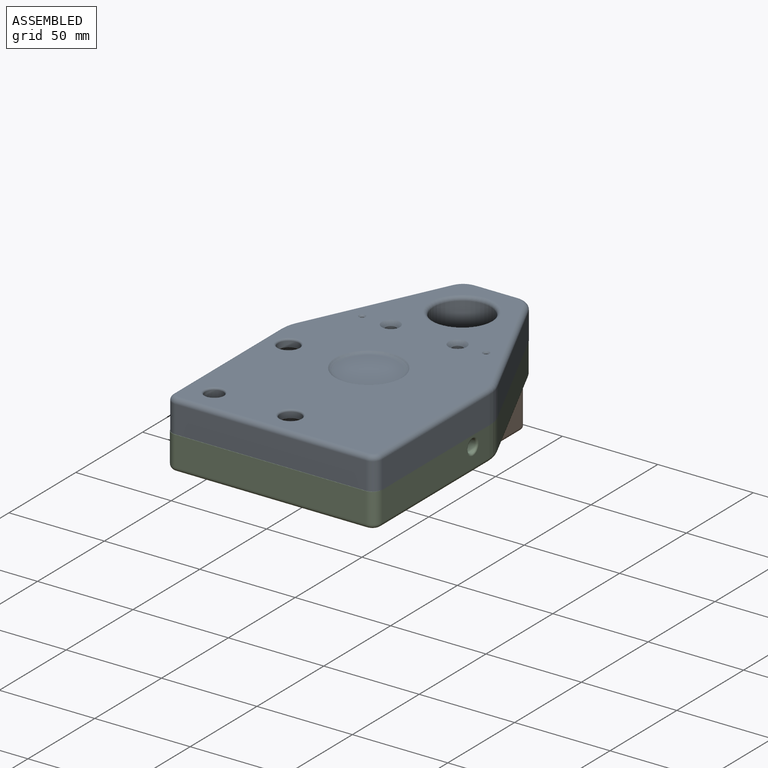
[diagram: assembled view]
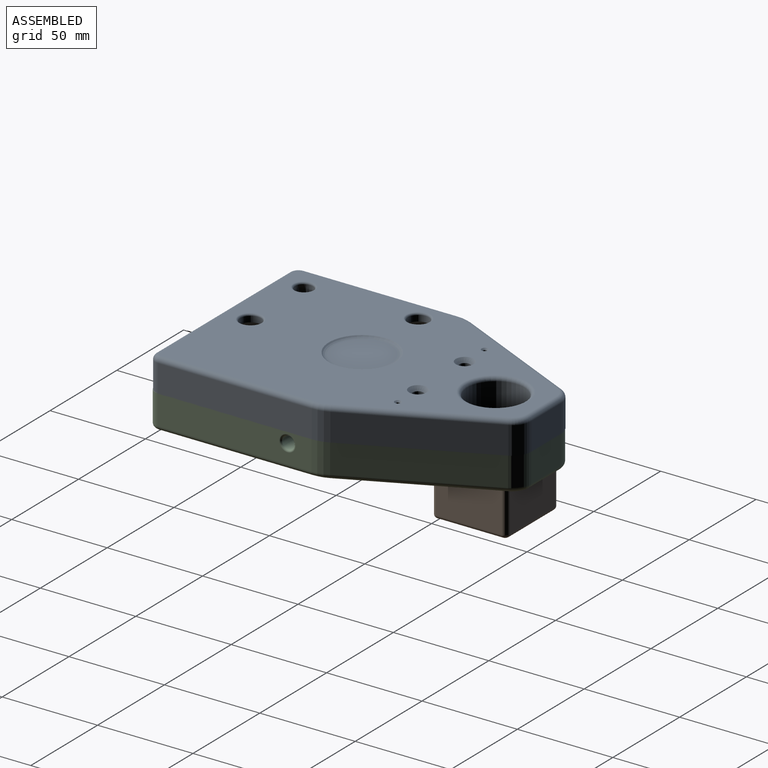
[diagram: assembled view, second angle]
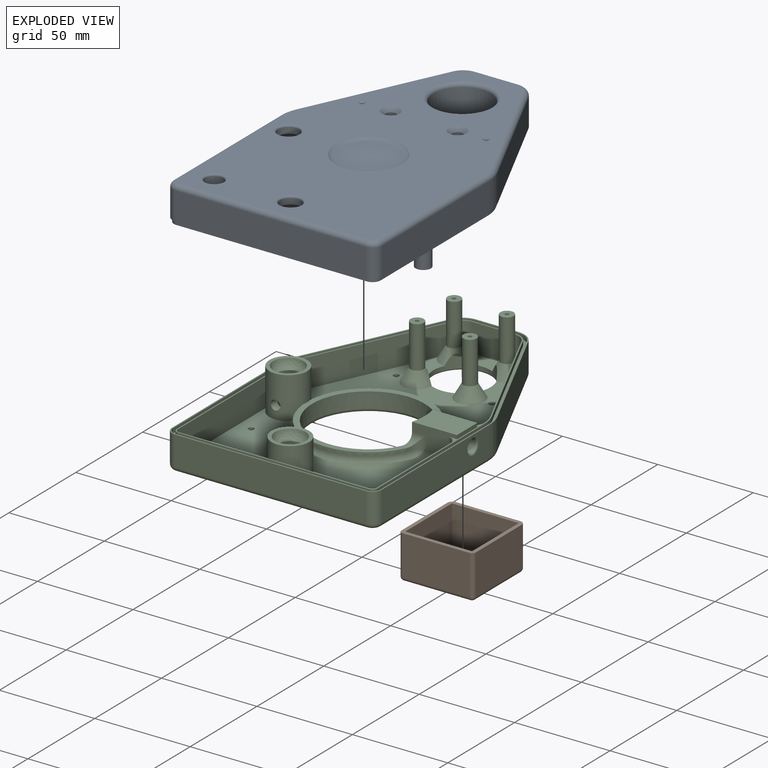
[diagram: exploded view]
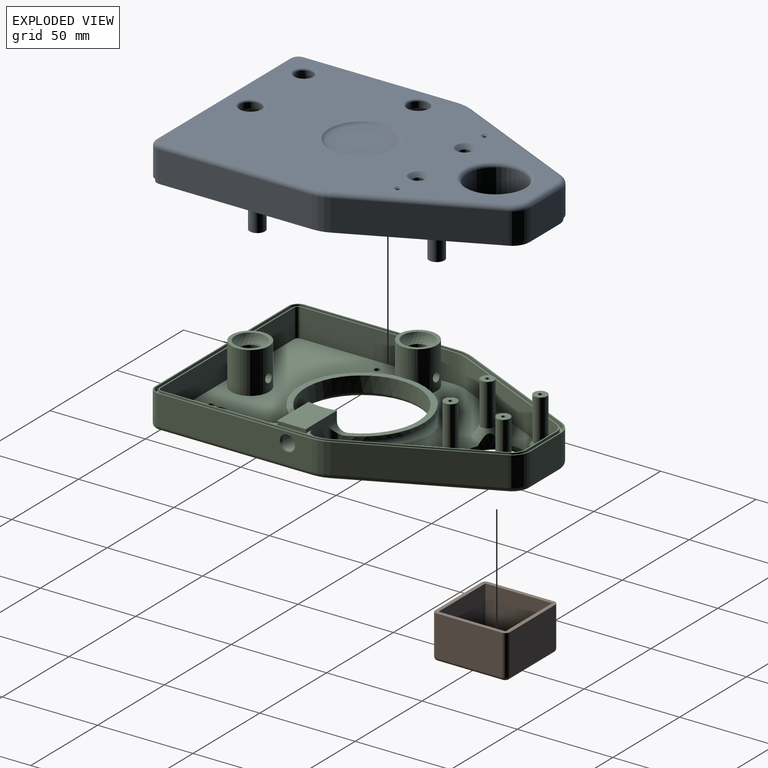
[diagram: exploded view, second angle]
ASSEMBLY  parts=3 mates=2
PART A: 127 faces, bbox 113.3x171.2x34 mm
  f0: cylinder r=5.5mm len=11mm, axis (0,0,-1), area 105.5mm2, adj f102,f104
  f1: plane 5.9x5.9mm, normal (0,0,-1), area 3.6mm2, adj f63,f67
  f2: plane 5.9x5.9mm, normal (0,0,-1), area 3.6mm2, adj f62,f64
  f3: cylinder r=10mm len=14.5mm, axis (0,0,-1), area 164.2mm2, adj f4,f14,f30,f78
  f4: plane 22.29x14.5mm, normal (0,1,0), area 323.2mm2, adj f3,f5,f30,f76
  f5: cylinder r=10mm len=14.5mm, axis (0,0,-1), area 164.2mm2, adj f4,f6,f30,f74
  f6: plane 70.21x32.91mm, normal (-0.91,0.42,0), area 1124.4mm2, adj f5,f7,f30,f72
  f7: cylinder r=20mm len=14.5mm, axis (0,0,-1), area 127.1mm2, adj f6,f8,f30,f73
  f8: plane 80.55x14.5mm, normal (-1,0,0), area 1167.9mm2, adj f7,f9,f30,f75
  f9: cylinder r=5mm len=14.5mm, axis (0,0,-1), area 113.9mm2, adj f8,f10,f30,f77
  f10: plane 100x14.5mm, normal (0,-1,0), area 1450mm2, adj f9,f11,f30,f79
  f11: cylinder r=5mm len=14.5mm, axis (0,0,-1), area 113.9mm2, adj f10,f12,f30,f81
  f12: plane 80.55x14.5mm, normal (1,0,0), area 1167.9mm2, adj f11,f13,f30,f83
  f13: cylinder r=20mm len=14.5mm, axis (0,0,-1), area 127.1mm2, adj f12,f14,f30,f82
  f14: plane 70.21x32.91mm, normal (0.91,0.42,0), area 1124.4mm2, adj f3,f13,f30,f80
  f15: plane 165x105mm, normal (0,0,1), area 12055.5mm2, adj f60,f70,f71,f72,f73,f74,f75,f76
  f16: cylinder r=7mm len=14mm, axis (0,0,-1), area 111mm2, adj f17,f27,f28,f29
  f17: plane 22.29x14mm, normal (0,-1,0), area 312mm2, adj f16,f18,f28,f29
  f18: cylinder r=7mm len=14mm, axis (0,0,-1), area 111mm2, adj f17,f19,f28,f29
  f19: plane 70.21x32.91mm, normal (0.91,-0.42,0), area 1078.5mm2, adj f18,f20,f28,f29,f126
  f20: cylinder r=17mm len=14mm, axis (0,0,-1), area 104.3mm2, adj f19,f21,f28,f29
  f21: plane 80.55x14mm, normal (1,0,0), area 1127.6mm2, adj f20,f22,f28,f29
  f22: cylinder r=2mm len=14mm, axis (0,0,-1), area 44mm2, adj f21,f23,f28,f29
  f23: plane 100x14mm, normal (0,1,0), area 1400mm2, adj f22,f24,f28,f29
  f24: cylinder r=2mm len=14mm, axis (0,0,-1), area 44mm2, adj f23,f25,f28,f29
  f25: plane 80.55x14mm, normal (-1,0,0), area 1127.6mm2, adj f24,f26,f28,f29
  f26: cylinder r=17mm len=14mm, axis (0,0,-1), area 104.3mm2, adj f25,f27,f28,f29
  f27: plane 70.21x32.91mm, normal (-0.91,-0.42,0), area 1078.5mm2, adj f16,f26,f28,f29,f125
  f28: plane 164x104mm, normal (0,0,-1), area 11342mm2, adj f16,f17,f18,f19,f20,f21,f22,f23
  f29: plane 165.7x105.7mm, normal (0,0,-1), area 406.4mm2, adj f16,f17,f18,f19,f20,f21,f22,f23
  f30: plane 170x110mm, normal (0,0,-1), area 417.9mm2, adj f3,f4,f5,f6,f7,f8,f9,f10
  f31: cylinder r=9.15mm len=8.29mm, axis (0,0,-1), area 22.3mm2, adj f30,f32,f54,f55
  f32: plane 70.21x32.91mm, normal (0.91,0.42,0), area 166.7mm2, adj f30,f31,f33,f55
  f33: cylinder r=19.15mm len=8.13mm, axis (0,0,-1), area 18mm2, adj f30,f32,f34,f55
  f34: plane 80.55x2.15mm, normal (1,0,0), area 173.2mm2, adj f30,f33,f35,f55
  f35: cylinder r=4.15mm len=4.15mm, axis (0,0,-1), area 14mm2, adj f30,f34,f36,f55
  f36: plane 100x2.15mm, normal (0,-1,0), area 215mm2, adj f30,f35,f37,f55
  f37: cylinder r=4.15mm len=4.15mm, axis (0,0,-1), area 14mm2, adj f30,f36,f38,f55
  f38: plane 80.55x2.15mm, normal (-1,0,0), area 173.2mm2, adj f30,f37,f39,f55
  f39: cylinder r=19.15mm len=8.13mm, axis (0,0,-1), area 18mm2, adj f30,f38,f40,f55
  f40: plane 70.21x32.91mm, normal (-0.91,0.42,0), area 166.7mm2, adj f30,f39,f41,f55
  f41: cylinder r=9.15mm len=8.29mm, axis (0,0,-1), area 22.3mm2, adj f30,f40,f54,f55
  f42: plane 70.21x32.91mm, normal (-0.91,-0.42,0), area 166.7mm2, adj f29,f43,f53,f55
  f43: cylinder r=7.85mm len=7.11mm, axis (0,0,-1), area 19.1mm2, adj f29,f42,f44,f55
  f44: plane 22.29x2.15mm, normal (0,-1,0), area 47.9mm2, adj f29,f43,f45,f55
  f45: cylinder r=7.85mm len=7.11mm, axis (0,0,-1), area 19.1mm2, adj f29,f44,f46,f55
  f46: plane 70.21x32.91mm, normal (0.91,-0.42,0), area 166.7mm2, adj f29,f45,f47,f55
  f47: cylinder r=17.85mm len=7.58mm, axis (0,0,-1), area 16.8mm2, adj f29,f46,f48,f55
  f48: plane 80.55x2.15mm, normal (1,0,0), area 173.2mm2, adj f29,f47,f49,f55
  f49: cylinder r=2.85mm len=2.85mm, axis (0,0,-1), area 9.6mm2, adj f29,f48,f50,f55
  f50: plane 100x2.15mm, normal (0,1,0), area 215mm2, adj f29,f49,f51,f55
  f51: cylinder r=2.85mm len=2.85mm, axis (0,0,-1), area 9.6mm2, adj f29,f50,f52,f55
  f52: plane 80.55x2.15mm, normal (-1,0,0), area 173.2mm2, adj f29,f51,f53,f55
  f53: cylinder r=17.85mm len=7.58mm, axis (0,0,-1), area 16.8mm2, adj f29,f42,f52,f55
  f54: plane 22.29x2.15mm, normal (0,1,0), area 47.9mm2, adj f30,f31,f41,f55
  f55: plane 168.3x108.3mm, normal (0,0,-1), area 630.4mm2, adj f31,f32,f33,f34,f35,f36,f37,f38
  f56: cylinder r=15mm len=30mm, axis (0,0,-1), area 1696.5mm2, adj f85,f86
  f57: cylinder r=8mm len=16mm, axis (0,0,-1), area 502.7mm2, adj f28,f58
  f58: plane 16x16mm, normal (0,0,-1), area 102.6mm2, adj f57,f59
  f59: cone r=4.9mm half-angle=4deg, axis (0,0,-1), area 389.4mm2, adj f58,f60
  f60: torus R=5.76mm, axis (0,0,1), area 52.7mm2, adj f15,f59
  f61: cylinder r=5.5mm len=11mm, axis (0,0,-1), area 105.5mm2, adj f101,f103
  f62: cylinder r=2.75mm len=5.5mm, axis (0,0,-1), area 17.3mm2, adj f2,f71
  f63: cylinder r=2.75mm len=5.5mm, axis (0,0,-1), area 17.3mm2, adj f1,f70
  f64: cylinder r=2.95mm len=5.9mm, axis (0,0,-1), area 25.9mm2, adj f2,f66
  f65: cylinder r=4.25mm len=8.5mm, axis (0,0,-1), area 37.4mm2, adj f28,f66
  f66: plane 8.5x8.5mm, normal (0,0,-1), area 29.4mm2, adj f64,f65
  f67: cylinder r=2.95mm len=5.9mm, axis (0,0,-1), area 25.9mm2, adj f1,f69
  f68: cylinder r=4.25mm len=8.5mm, axis (0,0,-1), area 37.4mm2, adj f28,f69
  f69: plane 8.5x8.5mm, normal (0,0,-1), area 29.4mm2, adj f67,f68
  f70: cone r=2.75mm half-angle=45deg, axis (0,0,1), area 66.6mm2, adj f15,f63
  f71: cone r=2.75mm half-angle=45deg, axis (0,0,1), area 66.6mm2, adj f15,f62
  f72: cylinder r=2.5mm len=71.27mm, axis (0.42,0.91,0), area 304.5mm2, adj f6,f15,f73,f74
  f73: torus R=17.5mm, axis (0,0,1), area 32.9mm2, adj f7,f15,f72,f75
  f74: torus R=7.5mm, axis (0,0,1), area 40.4mm2, adj f5,f15,f72,f76
  f75: cylinder r=2.5mm len=80.55mm, axis (0,1,0), area 316.3mm2, adj f8,f15,f73,f77
  f76: cylinder r=2.5mm len=22.29mm, axis (1,0,0), area 87.5mm2, adj f4,f15,f74,f78
  f77: torus R=2.5mm, axis (0,0,1), area 25.2mm2, adj f9,f15,f75,f79
  f78: torus R=7.5mm, axis (0,0,1), area 40.4mm2, adj f3,f15,f76,f80
  f79: cylinder r=2.5mm len=100mm, axis (-1,0,0), area 392.7mm2, adj f10,f15,f77,f81
  f80: cylinder r=2.5mm len=71.27mm, axis (0.42,-0.91,0), area 304.5mm2, adj f14,f15,f78,f82
  f81: torus R=2.5mm, axis (0,0,1), area 25.2mm2, adj f11,f15,f79,f83
  f82: torus R=17.5mm, axis (0,0,1), area 32.9mm2, adj f13,f15,f80,f83
  f83: cylinder r=2.5mm len=80.55mm, axis (0,-1,0), area 316.3mm2, adj f12,f15,f81,f82
  f84: cylinder r=17mm len=34mm, axis (0,0,-1), area 1815.8mm2, adj f28,f85
  f85: plane 34x34mm, normal (0,0,-1), area 201.1mm2, adj f56,f84
  f86: torus R=17mm, axis (0,0,1), area 310.4mm2, adj f15,f56
  f87: cylinder r=6mm len=12mm, axis (0,0,1), area 94.2mm2, adj f28,f88
  f88: plane 12x12mm, normal (0,0,-1), area 113.1mm2, adj f87
  f89: cylinder r=6mm len=12mm, axis (0,0,1), area 94.2mm2, adj f28,f90
  f90: plane 12x12mm, normal (0,0,-1), area 110mm2, adj f89,f95
  f91: cylinder r=6mm len=12mm, axis (0,0,1), area 94.2mm2, adj f28,f92
  f92: plane 12x12mm, normal (0,0,-1), area 110mm2, adj f91,f93
  f93: cylinder r=1mm len=4.75mm, axis (0,0,1), area 29.8mm2, adj f92,f94
  f94: cone r=1mm half-angle=45deg, axis (0,0,1), area 9.2mm2, adj f15,f93
  f95: cylinder r=1mm len=4.75mm, axis (0,0,1), area 29.8mm2, adj f90,f96
  f96: cone r=1mm half-angle=45deg, axis (0,0,1), area 9.2mm2, adj f15,f95
  f97: cylinder r=4mm len=22mm, axis (0,0,1), area 552.9mm2, adj f114,f126
  f98: cylinder r=4mm len=21mm, axis (0,0,1), area 527.8mm2, adj f117,f124
  f99: cylinder r=4mm len=22mm, axis (0,0,1), area 552.9mm2, adj f111,f125
  f100: cylinder r=4mm len=21mm, axis (0,0,1), area 527.8mm2, adj f120,f123
  f101: sphere r=8.1mm, area 238mm2, adj f61,f107
  f102: sphere r=8.1mm, area 238.1mm2, adj f0,f105
  f103: torus R=6.5mm, axis (0,0,1), area 57.9mm2, adj f15,f61
  f104: torus R=6.5mm, axis (0,0,1), area 57.9mm2, adj f0,f15
  f105: plane 19.8x19.8mm, normal (0,0,-1), area 106.8mm2, adj f102,f106
  f106: cylinder r=9.9mm len=19.8mm, axis (0,0,-1), area 356.5mm2, adj f28,f105
  f107: plane 19.8x19.8mm, normal (0,0,-1), area 106.8mm2, adj f101,f108
  f108: cylinder r=9.9mm len=19.8mm, axis (0,0,-1), area 356.5mm2, adj f28,f107
  f109: plane 30.53x30.53mm, normal (0,0,1), area 732mm2, adj f110
  f110: torus R=15.26mm, axis (0,0,-1), area 260.8mm2, adj f15,f109
  f111: plane 8x8mm, normal (0,0,-1), area 45.4mm2, adj f99,f113
  f112: cone r=0mm half-angle=59deg, axis (0,0,-1), area 5.7mm2, adj f113
  f113: cylinder r=1.25mm len=29mm, axis (0,0,-1), area 227.8mm2, adj f111,f112
  f114: plane 8x8mm, normal (0,0,-1), area 45.4mm2, adj f97,f116
  f115: cone r=0mm half-angle=59deg, axis (0,0,-1), area 5.7mm2, adj f116
  f116: cylinder r=1.25mm len=29mm, axis (0,0,-1), area 227.8mm2, adj f114,f115
  f117: plane 8x8mm, normal (0,0,-1), area 45.4mm2, adj f98,f119
  f118: cone r=0mm half-angle=59deg, axis (0,0,-1), area 5.7mm2, adj f119
  f119: cylinder r=1.25mm len=29mm, axis (0,0,-1), area 227.8mm2, adj f117,f118
  f120: plane 8x8mm, normal (0,0,-1), area 45.4mm2, adj f100,f122
  f121: cone r=0mm half-angle=59deg, axis (0,0,-1), area 5.7mm2, adj f122
  f122: cylinder r=1.25mm len=29mm, axis (0,0,-1), area 227.8mm2, adj f120,f121
  f123: cone r=4mm half-angle=20deg, axis (0,0,1), area 291.8mm2, adj f28,f100
  f124: cone r=6.91mm half-angle=20deg, axis (0,0,1), area 291.8mm2, adj f28,f98
  f125: cone r=4mm half-angle=30deg, axis (0,0,1), area 297.5mm2, adj f27,f28,f99
  f126: cone r=8.04mm half-angle=30deg, axis (0,0,1), area 297.5mm2, adj f19,f28,f97
PART B: 25 faces, bbox 39x39x23 mm
  f0: plane 35x35mm, normal (0,0,-1), area 1147.9mm2, adj f11,f12,f13,f15,f17,f18,f22,f24
  f1: plane 34.4x21mm, normal (-1,0,0), area 722.4mm2, adj f5,f13,f14,f23
  f2: plane 33.8x21mm, normal (0,1,0), area 709.8mm2, adj f5,f15,f21,f23
  f3: plane 34.4x21mm, normal (1,0,0), area 722.4mm2, adj f5,f17,f20,f21
  f4: plane 35x21mm, normal (0,-1,0), area 735mm2, adj f5,f14,f18,f20
  f5: plane 39x39mm, normal (0,0,1), area 291.4mm2, adj f1,f2,f3,f4,f6,f7,f8,f9
  f6: plane 35x21mm, normal (1,0,0), area 735mm2, adj f5,f7,f9,f10
  f7: plane 35x21mm, normal (0,-1,0), area 735mm2, adj f5,f6,f8,f10
  f8: plane 35x21mm, normal (-1,0,0), area 735mm2, adj f5,f7,f9,f10
  f9: plane 35x21mm, normal (0,1,0), area 735mm2, adj f5,f6,f8,f10
  f10: plane 35x35mm, normal (0,0,1), area 1210.9mm2, adj f6,f7,f8,f9,f11,f12
  f11: torus R=3.5mm, axis (0,0,-1), area 44mm2, adj f0,f10
  f12: torus R=3.5mm, axis (0,0,-1), area 44mm2, adj f0,f10
  f13: cylinder r=2mm len=34.4mm, axis (0,-1,0), area 108.1mm2, adj f0,f1,f16,f24
  f14: cylinder r=2mm len=21mm, axis (0,0,-1), area 66mm2, adj f1,f4,f5,f16
  f15: cylinder r=2mm len=33.8mm, axis (-1,0,0), area 106.2mm2, adj f0,f2,f22,f24
  f16: sphere r=2mm, area 6.3mm2, adj f13,f14,f18
  f17: cylinder r=2mm len=34.4mm, axis (0,1,0), area 108.1mm2, adj f0,f3,f19,f22
  f18: cylinder r=2mm len=35mm, axis (1,0,0), area 110mm2, adj f0,f4,f16,f19
  f19: sphere r=2mm, area 6.3mm2, adj f17,f18,f20
  f20: cylinder r=2mm len=21mm, axis (0,0,1), area 66mm2, adj f3,f4,f5,f19
  f21: cylinder r=2.6mm len=21mm, axis (0,0,-1), area 85.8mm2, adj f2,f3,f5,f22
  f22: torus R=0.6mm, axis (0,0,-1), area 9.2mm2, adj f0,f15,f17,f21
  f23: cylinder r=2.6mm len=21mm, axis (0,0,1), area 85.8mm2, adj f1,f2,f5,f24
  f24: torus R=0.6mm, axis (0,0,-1), area 9.2mm2, adj f0,f13,f15,f23
PART C: 143 faces, bbox 113.4x171.3x32.1 mm
  f0: plane 152.26x104mm, normal (0,0,1), area 7122mm2, adj f2,f4,f8,f10,f14,f15,f16,f17
  f1: plane 165x105mm, normal (0,0,-1), area 10112.6mm2, adj f76,f77,f78,f79,f80,f81,f82,f83
  f2: cylinder r=9.9mm len=21.73mm, axis (0,0,-1), area 1256.8mm2, adj f0,f9,f11,f67,f102,f119,f120,f126
  f3: cylinder r=5.5mm len=17.05mm, axis (0,0,-1), area 549mm2, adj f103,f104,f119,f120
  f4: cylinder r=9.9mm len=21.73mm, axis (0,0,-1), area 1331.9mm2, adj f0,f105,f118
  f5: cylinder r=5.5mm len=17.05mm, axis (0,0,-1), area 569.2mm2, adj f106,f107,f118
  f6: plane 168.77x108.77mm, normal (0,0,1), area 820.5mm2, adj f38,f39,f40,f41,f42,f43,f44,f45
  f7: cylinder r=29.5mm len=59mm, axis (0,0,1), area 1610.3mm2, adj f67,f96,f109,f110,f111,f112,f122,f127
  f8: plane 15x0.05mm, normal (-1,0,0), area 0.7mm2, adj f0,f13,f36,f121
  f9: cylinder r=32.5mm len=62.89mm, axis (0,0,1), area 176.5mm2, adj f2,f67,f127,f128,f129
  f10: plane 55.5x15mm, normal (-1,0,0), area 832.5mm2, adj f0,f13,f14,f130
  f11: cylinder r=32.5mm len=63.2mm, axis (0,0,1), area 178.3mm2, adj f2,f67,f122,f124,f126
  f12: plane 33.23x9.89mm, normal (0,0,1), area 173.1mm2, adj f20,f21,f22,f62,f73,f74
  f13: plane 165.3x105.3mm, normal (0,0,1), area 321.1mm2, adj f8,f10,f14,f15,f16,f17,f18,f19
  f14: cylinder r=2mm len=15mm, axis (0,0,-1), area 47.1mm2, adj f0,f10,f13,f15
  f15: plane 100x15mm, normal (0,1,0), area 1500mm2, adj f0,f13,f14,f16
  f16: cylinder r=2mm len=15mm, axis (0,0,-1), area 47.1mm2, adj f0,f13,f15,f17
  f17: plane 80.55x15mm, normal (1,0,0), area 1208.2mm2, adj f0,f13,f16,f18
  f18: cylinder r=17mm len=15mm, axis (0,0,-1), area 111.8mm2, adj f0,f13,f17,f19
  f19: plane 70.21x32.91mm, normal (0.91,-0.42,0), area 1143.4mm2, adj f0,f13,f18,f20,f74
  f20: cylinder r=7mm len=15mm, axis (0,0,-1), area 117.7mm2, adj f12,f13,f19,f21,f74
  f21: plane 22.29x15mm, normal (0,-1,0), area 334.3mm2, adj f12,f13,f20,f22
  f22: cylinder r=7mm len=15mm, axis (0,0,-1), area 117.7mm2, adj f12,f13,f21,f23,f73
  f23: plane 70.21x32.91mm, normal (-0.91,-0.42,0), area 1143.4mm2, adj f0,f13,f22,f36,f73
  f24: plane 80.55x15.5mm, normal (1,0,0), area 1189mm2, adj f25,f35,f37,f83,f113
  f25: cylinder r=20mm len=15.5mm, axis (0,0,-1), area 135.9mm2, adj f24,f26,f37,f85
  f26: plane 70.21x32.91mm, normal (0.91,0.42,0), area 1201.9mm2, adj f25,f27,f37,f87
  f27: cylinder r=10mm len=15.5mm, axis (0,0,-1), area 175.5mm2, adj f26,f28,f37,f86
  f28: plane 22.29x15.5mm, normal (0,1,0), area 345.4mm2, adj f27,f29,f37,f84
  f29: cylinder r=10mm len=15.5mm, axis (0,0,-1), area 175.5mm2, adj f28,f30,f37,f82
  f30: plane 70.21x32.91mm, normal (-0.91,0.42,0), area 1201.9mm2, adj f29,f31,f37,f80
  f31: cylinder r=20mm len=15.5mm, axis (0,0,-1), area 135.9mm2, adj f30,f32,f37,f78
  f32: plane 80.55x15.5mm, normal (-1,0,0), area 1248.4mm2, adj f31,f33,f37,f76
  f33: cylinder r=5mm len=15.5mm, axis (0,0,-1), area 121.7mm2, adj f32,f34,f37,f77
  f34: plane 100x15.5mm, normal (0,-1,0), area 1550mm2, adj f33,f35,f37,f79
  f35: cylinder r=5mm len=15.5mm, axis (0,0,-1), area 121.7mm2, adj f24,f34,f37,f81
  f36: cylinder r=17mm len=15mm, axis (0,0,-1), area 111.8mm2, adj f0,f8,f13,f23
  f37: plane 170x110mm, normal (0,0,1), area 320mm2, adj f24,f25,f26,f27,f28,f29,f30,f31
  f38: plane 80.55x2.35mm, normal (1,0,0), area 189mm2, adj f6,f13,f39,f61,f112
  f39: cylinder r=2.65mm len=2.65mm, axis (0,0,-1), area 9.8mm2, adj f6,f13,f38,f40
  f40: plane 100x2.35mm, normal (0,-1,0), area 235mm2, adj f6,f13,f39,f41
  f41: cylinder r=2.65mm len=2.65mm, axis (0,0,-1), area 9.8mm2, adj f6,f13,f40,f42
  f42: plane 80.55x2.35mm, normal (-1,0,0), area 189.3mm2, adj f6,f13,f41,f43
  f43: cylinder r=17.65mm len=7.49mm, axis (0,0,-1), area 18.2mm2, adj f6,f13,f42,f44
  f44: plane 70.21x32.91mm, normal (-0.91,0.42,0), area 182.2mm2, adj f6,f13,f43,f45
  f45: cylinder r=7.65mm len=6.93mm, axis (0,0,-1), area 20.4mm2, adj f6,f13,f44,f46
  f46: plane 22.29x2.35mm, normal (0,1,0), area 52.4mm2, adj f6,f13,f45,f47
  f47: cylinder r=7.65mm len=6.93mm, axis (0,0,-1), area 20.4mm2, adj f6,f13,f46,f48
  f48: plane 70.21x32.91mm, normal (0.91,0.42,0), area 182.2mm2, adj f6,f13,f47,f61
  f49: plane 80.55x2.35mm, normal (-1,0,0), area 188.8mm2, adj f6,f37,f50,f60,f113
  f50: cylinder r=19.35mm len=8.21mm, axis (0,0,-1), area 19.9mm2, adj f6,f37,f49,f51
  f51: plane 70.21x32.91mm, normal (-0.91,-0.42,0), area 182.2mm2, adj f6,f37,f50,f52
  f52: cylinder r=9.35mm len=8.47mm, axis (0,0,-1), area 24.9mm2, adj f6,f37,f51,f53
  f53: plane 22.29x2.35mm, normal (0,-1,0), area 52.4mm2, adj f6,f37,f52,f54
  f54: cylinder r=9.35mm len=8.47mm, axis (0,0,-1), area 24.9mm2, adj f6,f37,f53,f55
  f55: plane 70.21x32.91mm, normal (0.91,-0.42,0), area 182.2mm2, adj f6,f37,f54,f56
  f56: cylinder r=19.35mm len=8.21mm, axis (0,0,-1), area 19.9mm2, adj f6,f37,f55,f57
  f57: plane 80.55x2.35mm, normal (1,0,0), area 189.3mm2, adj f6,f37,f56,f58
  f58: cylinder r=4.35mm len=4.35mm, axis (0,0,-1), area 16.1mm2, adj f6,f37,f57,f59
  f59: plane 100x2.35mm, normal (0,1,0), area 235mm2, adj f6,f37,f58,f60
  f60: cylinder r=4.35mm len=4.35mm, axis (0,0,-1), area 16.1mm2, adj f6,f37,f49,f59
  f61: cylinder r=17.65mm len=7.49mm, axis (0,0,-1), area 18.2mm2, adj f6,f13,f38,f48
  f62: cylinder r=15mm len=30mm, axis (0,0,1), area 324.7mm2, adj f0,f12,f72,f73,f74,f75,f101
  f63: cylinder r=1mm len=31mm, axis (0,0,1), area 194.8mm2, adj f100,f116
  f64: cylinder r=1mm len=31mm, axis (0,0,1), area 194.8mm2, adj f99,f117
  f65: cylinder r=1mm len=31mm, axis (0,0,1), area 194.8mm2, adj f98,f114
  f66: cylinder r=1mm len=31mm, axis (0,0,1), area 194.8mm2, adj f97,f115
  f67: plane 65x62.61mm, normal (0,0,1), area 505.8mm2, adj f2,f7,f9,f11,f122,f127
  f68: cylinder r=3.5mm len=22mm, axis (0,0,1), area 483.8mm2, adj f72,f114
  f69: cylinder r=3.5mm len=22mm, axis (0,0,1), area 483.8mm2, adj f75,f115
  f70: cylinder r=3.5mm len=22mm, axis (0,0,1), area 483.8mm2, adj f74,f116
  f71: cylinder r=3.5mm len=22mm, axis (0,0,1), area 483.8mm2, adj f73,f117
  f72: cone r=3.5mm half-angle=30deg, axis (0,0,-1), area 238.8mm2, adj f0,f62,f68
  f73: cone r=3.5mm half-angle=30deg, axis (0,0,-1), area 213.2mm2, adj f0,f12,f22,f23,f62,f71
  f74: cone r=3.5mm half-angle=30deg, axis (0,0,-1), area 213.2mm2, adj f0,f12,f19,f20,f62,f70
  f75: cone r=3.5mm half-angle=30deg, axis (0,0,-1), area 238.8mm2, adj f0,f62,f69
  f76: cylinder r=2.5mm len=80.55mm, axis (0,1,0), area 316.3mm2, adj f1,f32,f77,f78
  f77: torus R=2.5mm, axis (0,0,1), area 25.2mm2, adj f1,f33,f76,f79
  f78: torus R=17.5mm, axis (0,0,1), area 32.9mm2, adj f1,f31,f76,f80
  f79: cylinder r=2.5mm len=100mm, axis (-1,0,0), area 392.7mm2, adj f1,f34,f77,f81
  f80: cylinder r=2.5mm len=71.27mm, axis (0.42,0.91,0), area 304.5mm2, adj f1,f30,f78,f82
  f81: torus R=2.5mm, axis (0,0,1), area 25.2mm2, adj f1,f35,f79,f83
  f82: torus R=7.5mm, axis (0,0,1), area 40.4mm2, adj f1,f29,f80,f84
  f83: cylinder r=2.5mm len=80.55mm, axis (0,1,0), area 316.3mm2, adj f1,f24,f81,f85
  f84: cylinder r=2.5mm len=22.29mm, axis (-1,0,0), area 87.5mm2, adj f1,f28,f82,f86
  f85: torus R=17.5mm, axis (0,0,1), area 32.9mm2, adj f1,f25,f83,f87
  f86: torus R=7.5mm, axis (0,0,1), area 40.4mm2, adj f1,f27,f84,f87
  f87: cylinder r=2.5mm len=71.27mm, axis (-0.42,0.91,0), area 304.5mm2, adj f1,f26,f85,f86
  f88: cylinder r=1.5mm len=3mm, axis (0,0,-1), area 10.7mm2, adj f0,f89
  f89: cone r=1.5mm half-angle=45deg, axis (0,0,-1), area 40.2mm2, adj f1,f88
  f90: cylinder r=1.5mm len=3mm, axis (0,0,-1), area 10.7mm2, adj f0,f91
  f91: cone r=1.5mm half-angle=45deg, axis (0,0,-1), area 40.2mm2, adj f1,f90
  f92: cylinder r=1.5mm len=3mm, axis (0,0,-1), area 10.7mm2, adj f0,f93
  f93: cone r=1.5mm half-angle=45deg, axis (0,0,-1), area 40.2mm2, adj f1,f92
  f94: cylinder r=1.5mm len=3mm, axis (0,0,-1), area 10.7mm2, adj f0,f95
  f95: cone r=1.5mm half-angle=45deg, axis (0,0,-1), area 40.2mm2, adj f1,f94
  f96: torus R=31.5mm, axis (0,0,1), area 596.7mm2, adj f1,f7
  f97: torus R=2mm, axis (0,0,1), area 13.5mm2, adj f1,f66
  f98: torus R=2mm, axis (0,0,1), area 13.5mm2, adj f1,f65
  f99: torus R=2mm, axis (0,0,1), area 13.5mm2, adj f1,f64
  f100: torus R=2mm, axis (0,0,1), area 13.5mm2, adj f1,f63
  f101: torus R=16mm, axis (0,0,1), area 151.6mm2, adj f1,f62
  f102: plane 19.8x19.8mm, normal (0,0,1), area 106.8mm2, adj f2,f104
  f103: plane 11x11mm, normal (0,0,1), area 95mm2, adj f3
  f104: sphere r=8.1mm, area 238.1mm2, adj f3,f102
  f105: plane 19.8x19.8mm, normal (0,0,1), area 106.8mm2, adj f4,f107
  f106: plane 11x11mm, normal (0,0,1), area 95mm2, adj f5
  f107: sphere r=8.1mm, area 238mm2, adj f5,f105
  f108: plane 15x2mm, normal (1,0,0), area 30mm2, adj f13,f109,f110,f111
  f109: plane 23.61x15mm, normal (0,0,1), area 342.4mm2, adj f7,f108,f110,f111
  f110: plane 23.34x12mm, normal (0,1,0), area 182mm2, adj f7,f13,f108,f109,f121,f122,f123,f124
  f111: plane 23.61x12mm, normal (0,-1,0), area 185.8mm2, adj f7,f13,f108,f109,f127,f129,f130,f132
  f112: cylinder r=3.35mm len=24.75mm, axis (1,0,0), area 514.6mm2, adj f6,f7,f38,f113
  f113: torus R=4.35mm, axis (-1,0,0), area 35.8mm2, adj f6,f24,f49,f112
  f114: plane 7x7mm, normal (0,0,1), area 35.3mm2, adj f65,f68
  f115: plane 7x7mm, normal (0,0,1), area 35.3mm2, adj f66,f69
  f116: plane 7x7mm, normal (0,0,1), area 35.3mm2, adj f63,f70
  f117: plane 7x7mm, normal (0,0,1), area 35.3mm2, adj f64,f71
  f118: cylinder r=2.5mm len=5mm, axis (0,1,0), area 71.3mm2, adj f4,f5
  f119: cylinder r=2.5mm len=5.02mm, axis (0,1,0), area 71.3mm2, adj f2,f3
  f120: cylinder r=2.5mm len=5.02mm, axis (0,1,0), area 71.3mm2, adj f2,f3
  f121: cylinder r=5mm len=15mm, axis (0,0,-1), area 103.5mm2, adj f8,f13,f110,f123
  f122: cylinder r=5mm len=8.58mm, axis (-1,0,0), area 33.1mm2, adj f7,f11,f67,f110,f124
  f123: cylinder r=5mm len=16.47mm, axis (1,0,0), area 115.1mm2, adj f0,f110,f121,f125
  f124: cylinder r=5mm len=7mm, axis (0,0,1), area 26.6mm2, adj f11,f110,f122,f125
  f125: sphere r=5mm, area 31.1mm2, adj f123,f124,f126
  f126: torus R=37.5mm, axis (0,0,1), area 718mm2, adj f0,f2,f11,f125
  f127: cylinder r=5mm len=8.69mm, axis (1,0,0), area 32.9mm2, adj f7,f9,f67,f111,f129
  f128: torus R=37.5mm, axis (0,0,1), area 710.3mm2, adj f0,f2,f9,f131
  f129: cylinder r=5mm len=7mm, axis (0,0,1), area 26.3mm2, adj f9,f111,f127,f131
  f130: cylinder r=5mm len=15mm, axis (0,0,1), area 103.5mm2, adj f10,f13,f111,f132
  f131: sphere r=5mm, area 30.4mm2, adj f128,f129,f132
  f132: cylinder r=5mm len=16.83mm, axis (-1,0,0), area 117.9mm2, adj f0,f111,f130,f131
  f133: cylinder r=3.4mm len=4.35mm, axis (0,0,-1), area 14.2mm2, adj f0,f1,f134,f140
  f134: plane 3.83x3mm, normal (-0.82,-0.57,0), area 14mm2, adj f0,f1,f133,f135
  f135: cylinder r=3.4mm len=5.19mm, axis (0,0,-1), area 17.8mm2, adj f0,f1,f134,f136
  f136: plane 9.68x9.68mm, normal (0.71,-0.71,0), area 41.1mm2, adj f0,f1,f135,f137
  f137: cylinder r=3.4mm len=5.19mm, axis (0,0,-1), area 17.8mm2, adj f0,f1,f136,f138
  f138: plane 3.83x3mm, normal (0.57,0.82,0), area 14mm2, adj f0,f1,f137,f139
  f139: cylinder r=3.4mm len=4.35mm, axis (0,0,-1), area 14.2mm2, adj f0,f1,f138,f140
  f140: plane 8.54x8.54mm, normal (-0.71,0.71,0), area 36.2mm2, adj f0,f1,f133,f139
  f141: cylinder r=1.55mm len=3.1mm, axis (0,0,-1), area 29.2mm2, adj f0,f1
  f142: cylinder r=1.55mm len=3.1mm, axis (0,0,-1), area 29.2mm2, adj f0,f1
PLACE A t=(0,0.2,-38.2)mm
PLACE B t=(0,0,25)mm
PLACE C at identity
MATE fastened A.f55 <-> C.f6  axis (0,0,-1) through (0,79.35,-37.35)mm
MATE fastened B.f12 <-> C.f64  axis (0,0,-1) through (13.85,67.35,-76)mm
